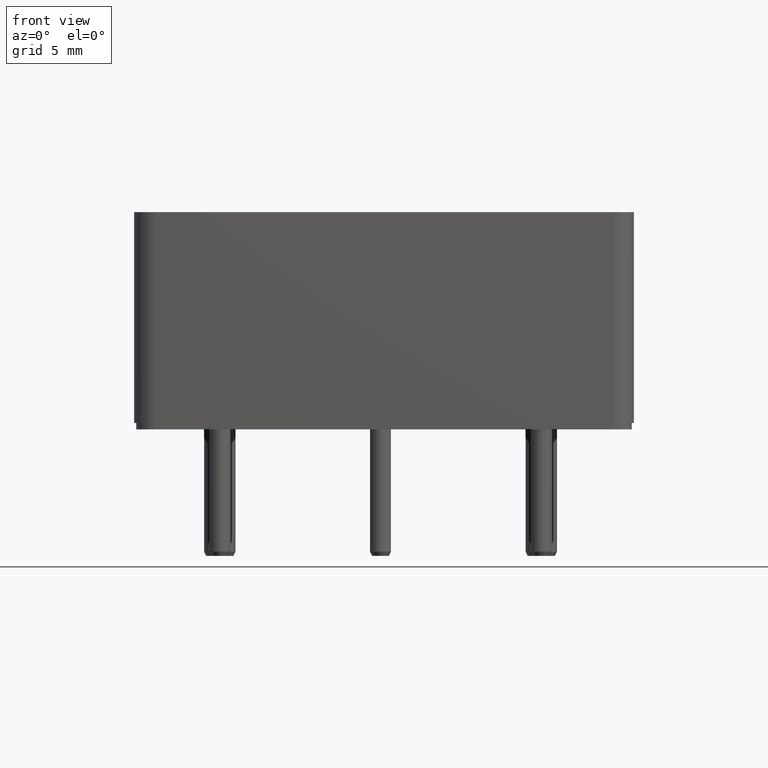
[diagram: clean part render]
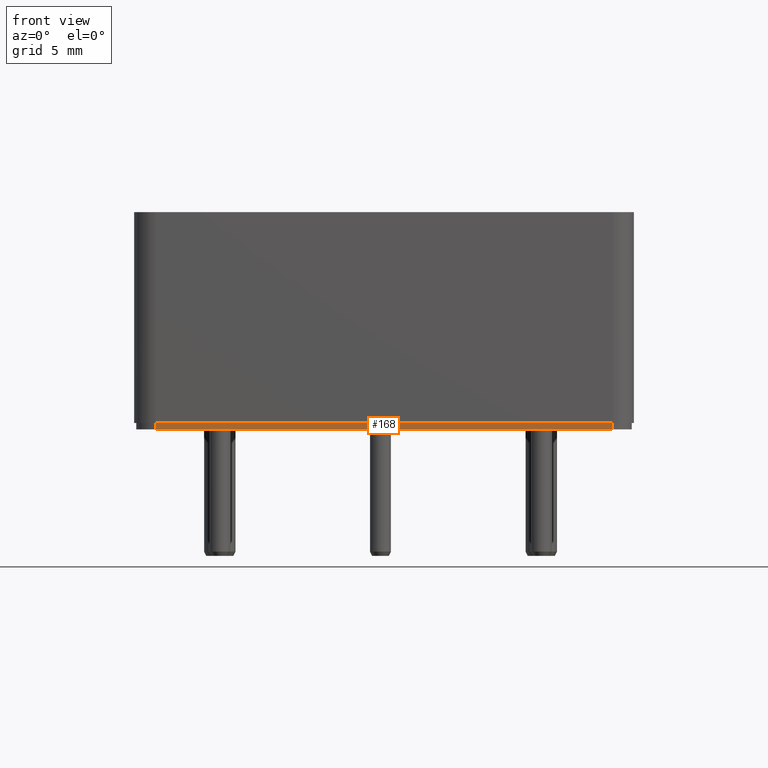
[diagram: same view with one face highlighted and labeled with its STEP entity id]
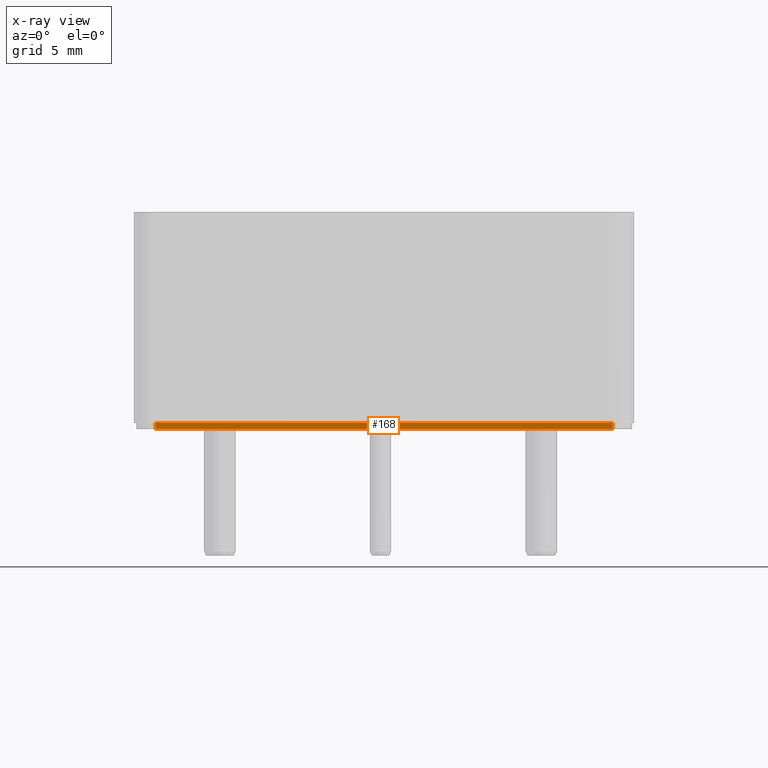
[diagram: x-ray of the same camera — body ghosted, the highlighted face saturated]
A machine part, front view. The second image highlights one B-rep face of the part: STEP entity #168.
The next image is the same camera in x-ray: the body ghosted, the highlighted face saturated — about 0% of this face is hidden behind the body in this view.
In plain terms, the highlighted planar face has unit normal (0, 1, 0).
Its self-contained STEP definition (entity closure, byte-faithful):
#168=ADVANCED_FACE('',(#541),#543,.F.);
#541=FACE_BOUND('',#542,.T.);
#542=EDGE_LOOP('',(#802,#803,#804,#805));
#543=PLANE('',#544);
#544=AXIS2_PLACEMENT_3D('',#545,#546,#547);
#545=CARTESIAN_POINT('',(-10.85,-9.6,0.299999999999999));
#546=DIRECTION('',(0.,1.,0.));
#547=DIRECTION('',(1.,0.,1.22789643276515E-16));
#802=ORIENTED_EDGE('',*,*,#890,.F.);
#803=ORIENTED_EDGE('',*,*,#916,.F.);
#804=ORIENTED_EDGE('',*,*,#917,.F.);
#805=ORIENTED_EDGE('',*,*,#918,.T.);
#890=EDGE_CURVE('',#961,#963,#964,.F.);
#916=EDGE_CURVE('',#1007,#961,#1009,.T.);
#917=EDGE_CURVE('',#1010,#1007,#1011,.T.);
#918=EDGE_CURVE('',#1010,#963,#1012,.T.);
#961=VERTEX_POINT('',#1089);
#963=VERTEX_POINT('',#1094);
#964=LINE('',#1095,#1096);
#1007=VERTEX_POINT('',#1203);
#1009=LINE('',#1208,#1209);
#1010=VERTEX_POINT('',#1211);
#1011=LINE('',#1212,#1213);
#1012=LINE('',#1215,#1216);
#1089=CARTESIAN_POINT('',(10.85,-9.6,1.33226762955019E-15));
#1094=CARTESIAN_POINT('',(-10.85,-9.6,-1.33226762955019E-15));
#1095=CARTESIAN_POINT('',(-10.85,-9.6,-1.33050470331253E-15));
#1096=VECTOR('',#1097,1.);
#1097=DIRECTION('',(1.,8.18597621843432E-17,1.22627161595625E-16));
#1203=CARTESIAN_POINT('',(10.85,-9.6,0.300000000000001));
#1208=CARTESIAN_POINT('',(10.85,-9.6,0.300000000000001));
#1209=VECTOR('',#1210,1.);
#1210=DIRECTION('',(5.92118946466751E-15,0.,-1.));
#1211=CARTESIAN_POINT('',(-10.85,-9.6,0.299999999999999));
#1212=CARTESIAN_POINT('',(-10.85,-9.6,0.299999999999999));
#1213=VECTOR('',#1214,1.);
#1214=DIRECTION('',(1.,8.18597621843432E-17,1.22789643276515E-16));
#1215=CARTESIAN_POINT('',(-10.85,-9.6,0.299999999999999));
#1216=VECTOR('',#1217,1.);
#1217=DIRECTION('',(-5.92118946466749E-15,0.,-1.));